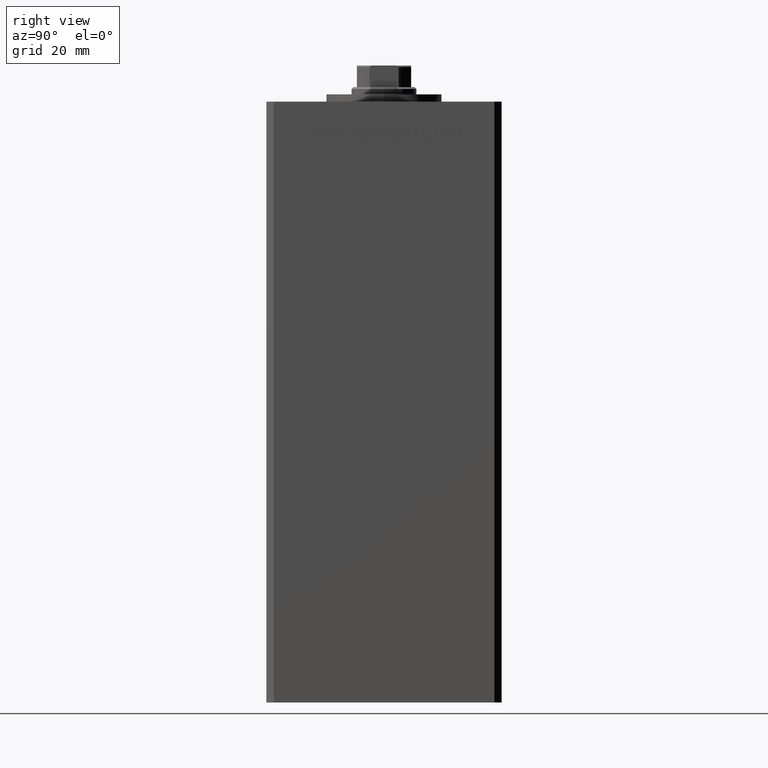
[diagram: clean part render]
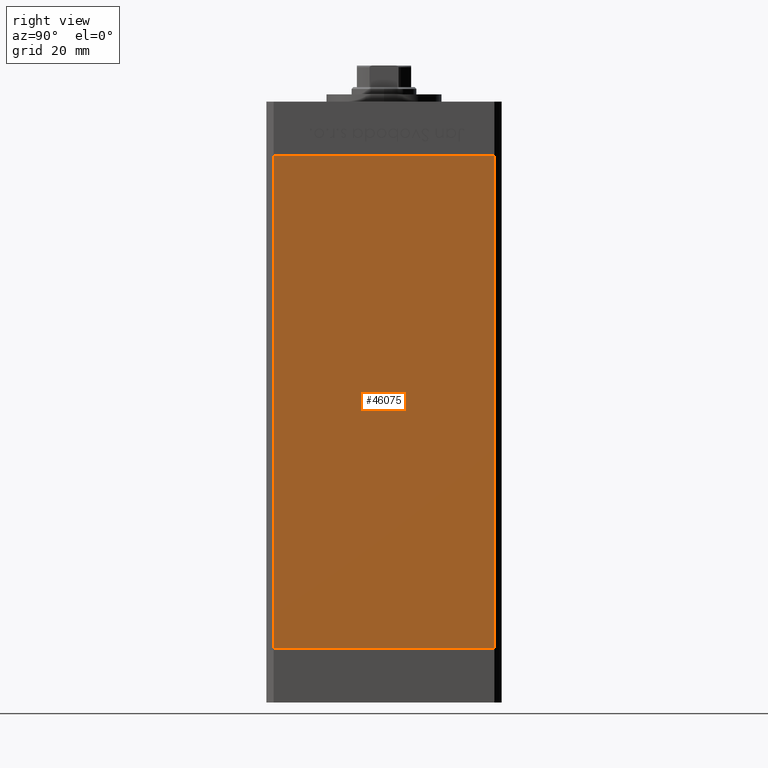
[diagram: same view with one face highlighted and labeled with its STEP entity id]
A machine part, right view. The second image highlights one B-rep face of the part: STEP entity #46075.
In plain terms, the highlighted planar face has unit normal (1, -0, 0).
Its self-contained STEP definition (entity closure, byte-faithful):
#3106 = ORIENTED_EDGE ( 'NONE', *, *, #7801, .T. ) ;
#7801 = EDGE_CURVE ( 'NONE', #40771, #41679, #7958, .T. ) ;
#7958 = LINE ( 'NONE', #42838, #8168 ) ;
#8168 = VECTOR ( 'NONE', #23191, 1000.000000000000000 ) ;
#8203 = CARTESIAN_POINT ( 'NONE',  ( 37.49999999999999289, -30.50000000000000000, 0.000000000000000000 ) ) ;
#8321 = DIRECTION ( 'NONE',  ( -2.275047181608927644E-16, -1.000000000000000000, 0.000000000000000000 ) ) ;
#8383 = DIRECTION ( 'NONE',  ( -0.000000000000000000, -0.000000000000000000, -1.000000000000000000 ) ) ;
#8693 = DIRECTION ( 'NONE',  ( -2.275047181608927644E-16, -1.000000000000000000, 0.000000000000000000 ) ) ;
#12217 = EDGE_CURVE ( 'NONE', #33455, #40771, #48936, .T. ) ;
#13252 = FACE_OUTER_BOUND ( 'NONE', #37299, .T. ) ;
#14049 = VECTOR ( 'NONE', #8321, 1000.000000000000000 ) ;
#16155 = ORIENTED_EDGE ( 'NONE', *, *, #36059, .F. ) ;
#17431 = DIRECTION ( 'NONE',  ( 1.000000000000000000, -2.275047181608927644E-16, 0.000000000000000000 ) ) ;
#17750 = CARTESIAN_POINT ( 'NONE',  ( 37.49999999999999289, -30.50000000000000000, 136.0000000000000000 ) ) ;
#19574 = VECTOR ( 'NONE', #8693, 1000.000000000000000 ) ;
#22643 = ORIENTED_EDGE ( 'NONE', *, *, #12217, .T. ) ;
#23191 = DIRECTION ( 'NONE',  ( -0.000000000000000000, -0.000000000000000000, -1.000000000000000000 ) ) ;
#24994 = CARTESIAN_POINT ( 'NONE',  ( 37.50000000000000711, 30.50000000000000000, 136.0000000000000000 ) ) ;
#25916 = EDGE_CURVE ( 'NONE', #33455, #37315, #47960, .T. ) ;
#28630 = VECTOR ( 'NONE', #8383, 1000.000000000000000 ) ;
#29241 = PLANE ( 'NONE',  #38037 ) ;
#33424 = DIRECTION ( 'NONE',  ( 2.275047181608927644E-16, 1.000000000000000000, 0.000000000000000000 ) ) ;
#33455 = VERTEX_POINT ( 'NONE', #24994 ) ;
#36059 = EDGE_CURVE ( 'NONE', #37315, #41679, #39895, .T. ) ;
#36160 = CARTESIAN_POINT ( 'NONE',  ( 37.50000000000000711, 30.50000000000000000, 0.000000000000000000 ) ) ;
#37299 = EDGE_LOOP ( 'NONE', ( #16155, #38968, #22643, #3106 ) ) ;
#37315 = VERTEX_POINT ( 'NONE', #36160 ) ;
#37341 = CARTESIAN_POINT ( 'NONE',  ( 37.50000000000000711, 30.50000000000000000, 136.0000000000000000 ) ) ;
#38037 = AXIS2_PLACEMENT_3D ( 'NONE', #37341, #17431, #33424 ) ;
#38968 = ORIENTED_EDGE ( 'NONE', *, *, #25916, .F. ) ;
#39895 = LINE ( 'NONE', #40145, #19574 ) ;
#40145 = CARTESIAN_POINT ( 'NONE',  ( 37.50000000000000711, 30.50000000000000000, 0.000000000000000000 ) ) ;
#40771 = VERTEX_POINT ( 'NONE', #17750 ) ;
#41679 = VERTEX_POINT ( 'NONE', #8203 ) ;
#42838 = CARTESIAN_POINT ( 'NONE',  ( 37.49999999999999289, -30.50000000000000000, 136.0000000000000000 ) ) ;
#46075 = ADVANCED_FACE ( 'NONE', ( #13252 ), #29241, .T. ) ;
#47960 = LINE ( 'NONE', #48740, #28630 ) ;
#48740 = CARTESIAN_POINT ( 'NONE',  ( 37.50000000000000711, 30.50000000000000000, 136.0000000000000000 ) ) ;
#48936 = LINE ( 'NONE', #51820, #14049 ) ;
#51820 = CARTESIAN_POINT ( 'NONE',  ( 37.50000000000000711, 30.50000000000000000, 136.0000000000000000 ) ) ;